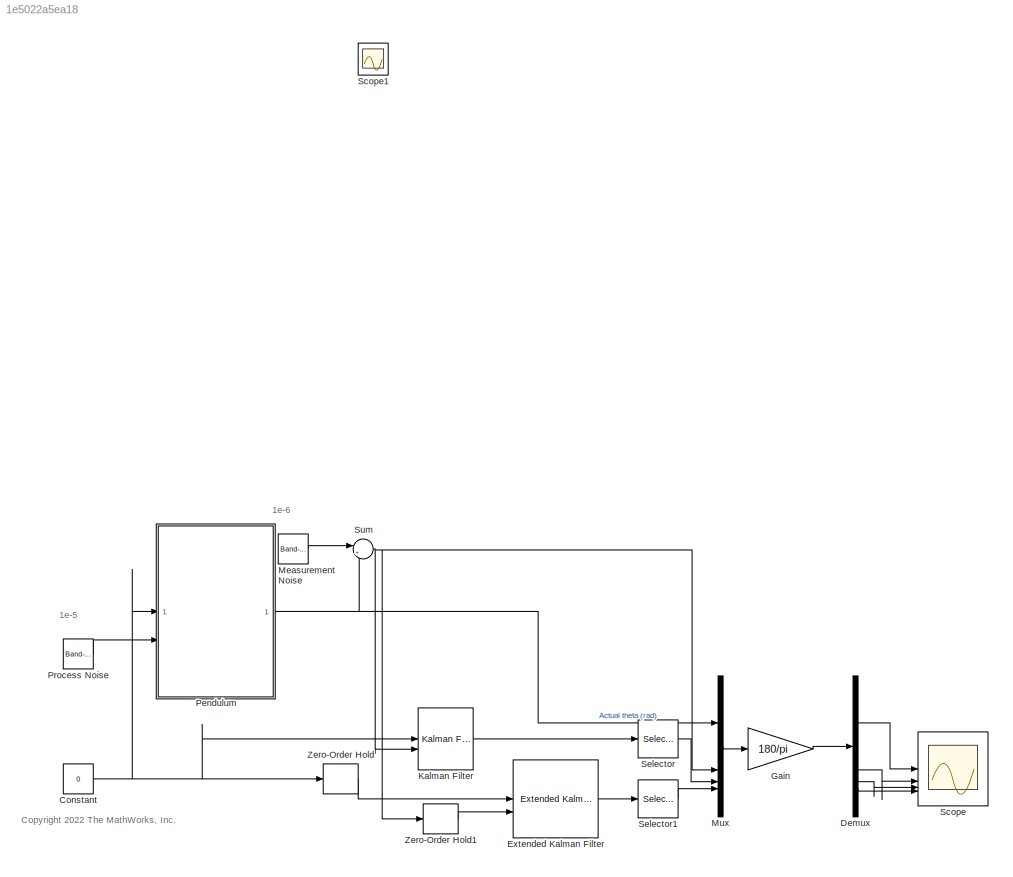
MODEL slx_1e5022a5ea18
KIND model
CONFIG AbsTol = auto
CONFIG EnableMultiTasking = off
CONFIG FixedStep = Ts
CONFIG InitFcn = Ts = 0.01;
CONFIG MaxStep = auto
CONFIG MinStep = auto
CONFIG RelTol = 1e-3
CONFIG SampleTimeConstraint = Unconstrained
CONFIG SolverName = FixedStepAuto
CONFIG StartTime = 0.0
CONFIG StopTime = 5
BLOCK [Constant] Constant
  Value = 0
BLOCK [Demux] Demux
BLOCK [Reference] Extended Kalman Filter  REF=sharedTrackingLibrary/Extended Kalman Filter
  LibrarySourceBlock = cstblocks/State Estimation/Extended Kalman Filter
  SourceBlock = sharedTrackingLibrary/Extended Kalman Filter
  SourceType = Extended Kalman Filter
BLOCK [Gain] Gain
  Gain = 180/pi
BLOCK [Reference] Kalman Filter  REF=ctrlSharedLib/Kalman Filter
  LibrarySourceBlock = cstblocks/State Estimation/Kalman Filter
  SourceBlock = ctrlSharedLib/Kalman Filter
  SourceType = ctrlKalmanFilter
BLOCK [Reference] Measurement Noise  REF=simulink/Sources/Band-Limited
White Noise
  SourceBlock = simulink/Sources/Band-Limited\nWhite Noise
  SourceType = Band-Limited White Noise.
BLOCK [Mux] Mux
  DisplayOption = bar
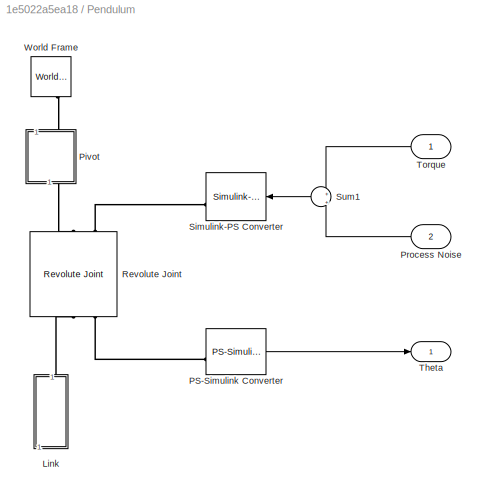
BLOCK [SubSystem] Pendulum
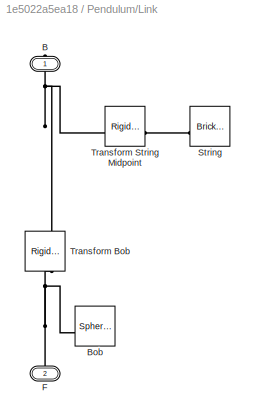
BLOCK [SubSystem] Pendulum/Link
  NameLocation = right
  Tag = CustomStyle
BLOCK [PMIOPort] Pendulum/Link/B
  NameLocation = right
  Side = Right
BLOCK [Reference] Pendulum/Link/Bob  REF=sm_lib/Body Elements/Spherical Solid
  SourceBlock = sm_lib/Body Elements/Spherical Solid
  SourceType = Spherical Solid
BLOCK [PMIOPort] Pendulum/Link/F
  NameLocation = right
  Port = 2
  Side = Left
BLOCK [Reference] Pendulum/Link/String  REF=sm_lib/Body Elements/Brick Solid
  SourceBlock = sm_lib/Body Elements/Brick Solid
  SourceType = Brick Solid
BLOCK [Reference] Pendulum/Link/Transform Bob   REF=sm_lib/Frames and
Transforms/Rigid
Transform
  NameLocation = right
  SourceBlock = sm_lib/Frames and\nTransforms/Rigid\nTransform
  SourceType = Rigid\nTransform
BLOCK [Reference] Pendulum/Link/Transform String Midpoint  REF=sm_lib/Frames and
Transforms/Rigid
Transform
  SourceBlock = sm_lib/Frames and\nTransforms/Rigid\nTransform
  SourceType = Rigid\nTransform
BLOCK [Reference] Pendulum/PS-Simulink Converter  REF=nesl_utility/PS-Simulink
Converter
  SourceBlock = nesl_utility/PS-Simulink\nConverter
  SourceType = PS-Simulink\nConverter
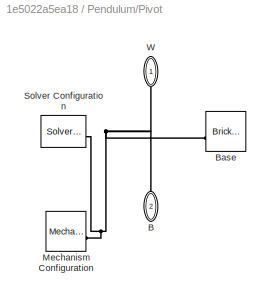
BLOCK [SubSystem] Pendulum/Pivot
  NameLocation = right
  Tag = CustomStyle
BLOCK [PMIOPort] Pendulum/Pivot/B
  NameLocation = right
  Port = 2
  Side = Right
BLOCK [Reference] Pendulum/Pivot/Base  REF=sm_lib/Body Elements/Brick Solid
  SourceBlock = sm_lib/Body Elements/Brick Solid
  SourceType = Brick Solid
BLOCK [Reference] Pendulum/Pivot/Mechanism Configuration  REF=sm_lib/Utilities/Mechanism
Configuration
  SourceBlock = sm_lib/Utilities/Mechanism\nConfiguration
  SourceType = Mechanism\nConfiguration
BLOCK [Reference] Pendulum/Pivot/Solver Configuration  REF=nesl_utility/Solver
Configuration
  SourceBlock = nesl_utility/Solver\nConfiguration
  SourceType = Solver\nConfiguration
BLOCK [PMIOPort] Pendulum/Pivot/W
  NameLocation = right
  Side = Left
BLOCK [Inport] Pendulum/Process Noise
  NameLocation = top
  Port = 2
BLOCK [Reference] Pendulum/Revolute Joint  REF=sm_lib/Joints/Revolute Joint
  NameLocation = right
  SourceBlock = sm_lib/Joints/Revolute Joint
  SourceType = Revolute Joint
BLOCK [Reference] Pendulum/Simulink-PS Converter  REF=nesl_utility/Simulink-PS
Converter
  NameLocation = top
  SourceBlock = nesl_utility/Simulink-PS\nConverter
  SourceType = Simulink-PS\nConverter
BLOCK [Sum] Pendulum/Sum1
  Inputs = +|+
  NameLocation = top
BLOCK [Outport] Pendulum/Theta
BLOCK [Inport] Pendulum/Torque
  NameLocation = top
BLOCK [Reference] Pendulum/World Frame  REF=sm_lib/Frames and
Transforms/World Frame
  NameLocation = right
  SourceBlock = sm_lib/Frames and\nTransforms/World Frame
  SourceType = World Frame
BLOCK [Reference] Process Noise  REF=simulink/Sources/Band-Limited
White Noise
  SourceBlock = simulink/Sources/Band-Limited\nWhite Noise
  SourceType = Band-Limited White Noise.
BLOCK [Scope] Scope
  Floating = off
  NumInputPorts = 4
  ScopeSpecificationString = Simulink.scopes.TimeScopeBlockCfg('CurrentConfiguration', extmgr.ConfigurationSet(extmgr.Configuration('Core','General UI',true),extmgr.Configuration('Core','Source UI',true),extmgr.Configuration('Sources','WiredSimulink',true,'DataLoggingVariableName','theta','DataLogging',true,'DataLoggingSaveFormat','Structure'),extmgr.Configuration('Visuals','Time Domain',true,'SerializedDisplays',{struct('Min...<+1524ch>
BLOCK [Scope] Scope1
  Floating = off
  IOType = viewer
  NumInputPorts = 1
  ScopeSpecificationString = Simulink.scopes.TimeScopeBlockCfg('CurrentConfiguration', extmgr.ConfigurationSet(extmgr.Configuration('Core','General UI',true),extmgr.Configuration('Core','Source UI',true),extmgr.Configuration('Sources','WiredSimulink',true),extmgr.Configuration('Visuals','Time Domain',true,'SerializedDisplays',{struct('MinYLimReal','-10.00000','MaxYLimReal','10.00000','YLabelReal','','MinYLimMag','0.00000','Ma...<+1326ch>
BLOCK [Selector] Selector
  IndexOptions = Index vector (dialog)
  Indices = [1]
  InputPortWidth = 2
  OutputSizes = 1
BLOCK [Selector] Selector1
  IndexOptions = Index vector (dialog)
  Indices = [1]
  InputPortWidth = 2
  OutputSizes = 1
BLOCK [Sum] Sum
  Inputs = |++
BLOCK [ZeroOrderHold] Zero-Order Hold
  SampleTime = 0.01
BLOCK [ZeroOrderHold] Zero-Order Hold1
  SampleTime = 0.01
ANNOTATION (root): 1e-5
ANNOTATION (root): 1e-6
ANNOTATION (root): <copyright redacted>
NET Constant:1 -> Kalman Filter:1, Pendulum:1, Zero-Order Hold:1
LINE Demux:1 -> Scope:1
LINE Demux:2 -> Scope:2
LINE Demux:3 -> Scope:3
LINE Demux:4 -> Scope:4
LINE Extended Kalman Filter:1 -> Selector1:1
LINE Gain:1 -> Demux:1
LINE Kalman Filter:1 -> Selector:1
LINE Measurement Noise:1 -> Sum:1
LINE Mux:1 -> Gain:1
LINE Pendulum/PS-Simulink Converter:1 -> Pendulum/Theta:1
LINE Pendulum/Process Noise:1 -> Pendulum/Sum1:2
LINE Pendulum/Sum1:1 -> Pendulum/Simulink-PS Converter:1
LINE Pendulum/Torque:1 -> Pendulum/Sum1:1
NET Pendulum:1 -> Mux:1, Sum:2
LINE Process Noise:1 -> Pendulum:2
LINE Selector1:1 -> Mux:4
LINE Selector:1 -> Mux:3
NET Sum:1 -> Kalman Filter:2, Mux:2, Zero-Order Hold1:1
LINE Zero-Order Hold1:1 -> Extended Kalman Filter:2
LINE Zero-Order Hold:1 -> Extended Kalman Filter:1
PNET net1: Pendulum/Link/B:RConn1 -- Pendulum/Link/Transform Bob :LConn1 -- Pendulum/Link/Transform String Midpoint:LConn1
PNET net2: Pendulum/Link/Bob:RConn1 -- Pendulum/Link/F:RConn1 -- Pendulum/Link/Transform Bob :RConn1
PLINE Pendulum/Link/String:RConn1 -- Pendulum/Link/Transform String Midpoint:RConn1
PLINE Pendulum/Link:RConn1 -- Pendulum/Revolute Joint:RConn1
PLINE Pendulum/PS-Simulink Converter:LConn1 -- Pendulum/Revolute Joint:RConn2
PNET net3: Pendulum/Pivot/B:RConn1 -- Pendulum/Pivot/Base:RConn1 -- Pendulum/Pivot/Mechanism Configuration:RConn1 -- Pendulum/Pivot/Solver Configuration:RConn1 -- Pendulum/Pivot/W:RConn1
PLINE Pendulum/Pivot:LConn1 -- Pendulum/World Frame:RConn1
PLINE Pendulum/Pivot:RConn1 -- Pendulum/Revolute Joint:LConn1
PLINE Pendulum/Revolute Joint:LConn2 -- Pendulum/Simulink-PS Converter:RConn1
note: NET lines group one-source signal fan-out (src -> all destinations, sorted); 1:1 wires keep LINE; PNET lines group multi-terminal physical nets as a canonical sorted terminal list (undirected conserving connections); 2-terminal nets keep the pairwise PLINE form
